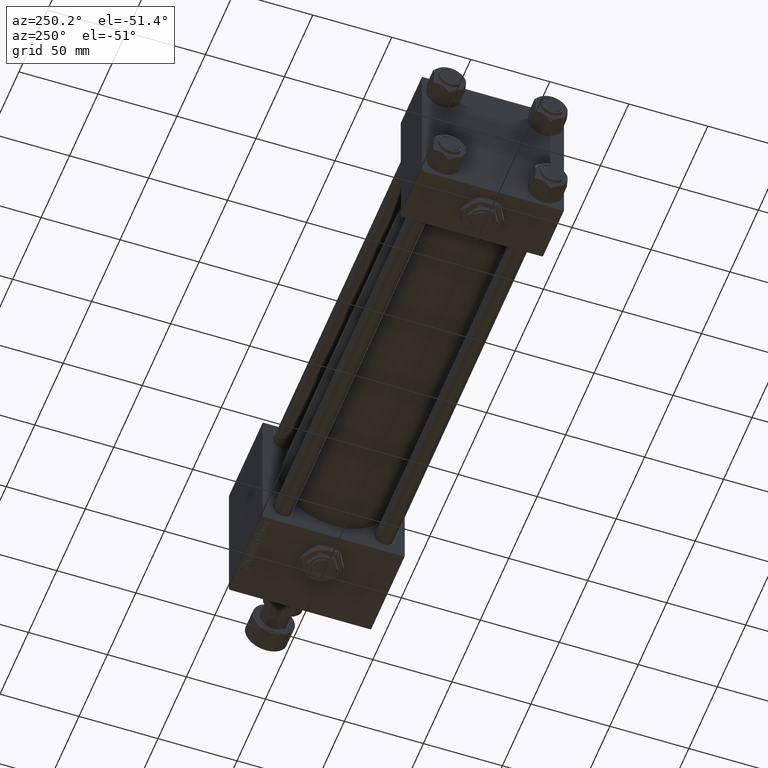
[diagram: clean part render]
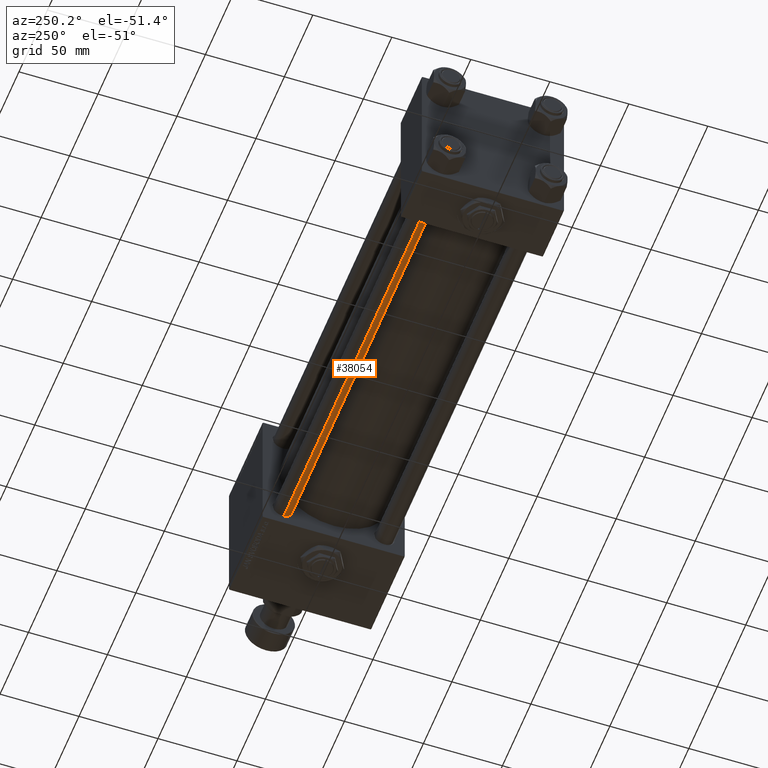
[diagram: same view with one face highlighted and labeled with its STEP entity id]
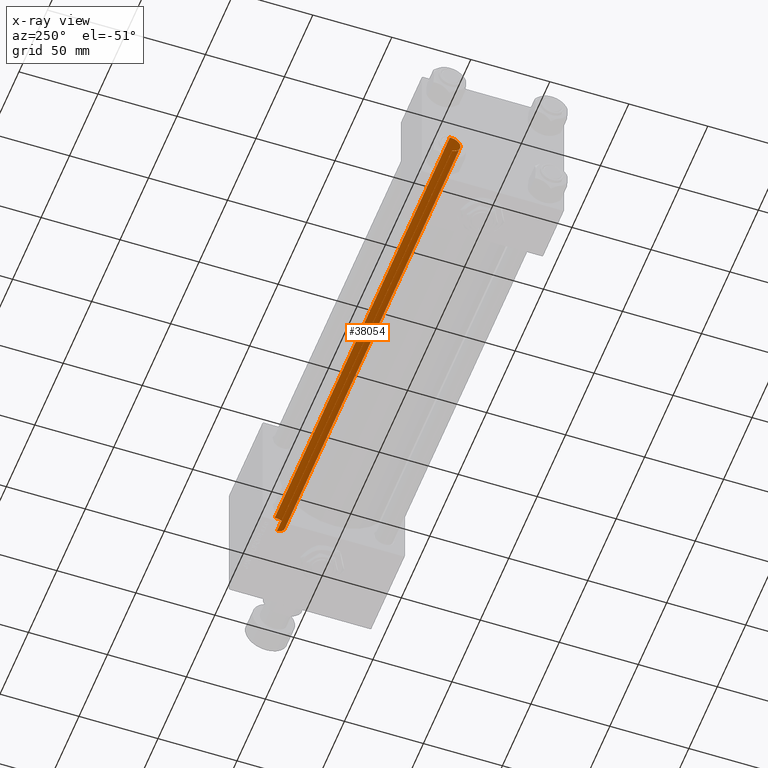
[diagram: x-ray of the same camera — body ghosted, the highlighted face saturated]
A machine part, auxiliary view. The second image highlights one B-rep face of the part: STEP entity #38054.
The next image is the same camera in x-ray: the body ghosted, the highlighted face saturated — about 0% of this face is hidden behind the body in this view.
In plain terms, the highlighted cylindrical surface (edge-blend (fillet) strip) has radius 6 mm, axis along (1, -0, 0).
Its self-contained STEP definition (entity closure, byte-faithful):
#322 = LINE ( 'NONE', #32853, #24265 ) ;
#938 = AXIS2_PLACEMENT_3D ( 'NONE', #42290, #17477, #4696 ) ;
#3420 = ORIENTED_EDGE ( 'NONE', *, *, #47959, .T. ) ;
#3432 = CIRCLE ( 'NONE', #13683, 6.000000000000000888 ) ;
#3636 = EDGE_CURVE ( 'NONE', #21544, #6914, #322, .T. ) ;
#4696 = DIRECTION ( 'NONE',  ( 1.000000000000000000, 0.000000000000000000, 0.000000000000000000 ) ) ;
#5821 = FACE_OUTER_BOUND ( 'NONE', #10164, .T. ) ;
#6673 = ORIENTED_EDGE ( 'NONE', *, *, #3636, .T. ) ;
#6914 = VERTEX_POINT ( 'NONE', #24608 ) ;
#9239 = CARTESIAN_POINT ( 'NONE',  ( 6.000000000000000888, 7.347880794884120722E-16, 0.5000000000000004441 ) ) ;
#10164 = EDGE_LOOP ( 'NONE', ( #37068, #3420, #6673, #30141 ) ) ;
#13683 = AXIS2_PLACEMENT_3D ( 'NONE', #30531, #14019, #22013 ) ;
#13742 = LINE ( 'NONE', #46559, #42276 ) ;
#14019 = DIRECTION ( 'NONE',  ( -0.000000000000000000, -0.000000000000000000, 1.000000000000000000 ) ) ;
#15877 = CARTESIAN_POINT ( 'NONE',  ( -6.000000000000000888, 0.000000000000000000, 308.5000000000000000 ) ) ;
#17477 = DIRECTION ( 'NONE',  ( 0.000000000000000000, 0.000000000000000000, -1.000000000000000000 ) ) ;
#19157 = EDGE_CURVE ( 'NONE', #6914, #34456, #3432, .T. ) ;
#19477 = CARTESIAN_POINT ( 'NONE',  ( 6.000000000000000888, 7.347880794884120722E-16, 308.5000000000000000 ) ) ;
#21544 = VERTEX_POINT ( 'NONE', #15877 ) ;
#22013 = DIRECTION ( 'NONE',  ( 1.000000000000000000, 0.000000000000000000, 0.000000000000000000 ) ) ;
#22091 = CYLINDRICAL_SURFACE ( 'NONE', #40523, 6.000000000000000888 ) ;
#23946 = CIRCLE ( 'NONE', #938, 6.000000000000000888 ) ;
#24265 = VECTOR ( 'NONE', #37375, 1000.000000000000000 ) ;
#24608 = CARTESIAN_POINT ( 'NONE',  ( -6.000000000000000888, 0.000000000000000000, 0.5000000000000004441 ) ) ;
#29309 = CARTESIAN_POINT ( 'NONE',  ( 0.000000000000000000, 0.000000000000000000, 309.0000000000000000 ) ) ;
#30000 = DIRECTION ( 'NONE',  ( -0.000000000000000000, -0.000000000000000000, -1.000000000000000000 ) ) ;
#30141 = ORIENTED_EDGE ( 'NONE', *, *, #19157, .T. ) ;
#30531 = CARTESIAN_POINT ( 'NONE',  ( 0.000000000000000000, 0.000000000000000000, 0.5000000000000004441 ) ) ;
#32853 = CARTESIAN_POINT ( 'NONE',  ( -6.000000000000000888, 0.000000000000000000, 309.0000000000000000 ) ) ;
#34354 = DIRECTION ( 'NONE',  ( -0.000000000000000000, -0.000000000000000000, -1.000000000000000000 ) ) ;
#34456 = VERTEX_POINT ( 'NONE', #9239 ) ;
#37068 = ORIENTED_EDGE ( 'NONE', *, *, #39568, .F. ) ;
#37375 = DIRECTION ( 'NONE',  ( -0.000000000000000000, -0.000000000000000000, -1.000000000000000000 ) ) ;
#38054 = ADVANCED_FACE ( 'NONE', ( #5821 ), #22091, .T. ) ;
#38696 = VERTEX_POINT ( 'NONE', #19477 ) ;
#39568 = EDGE_CURVE ( 'NONE', #38696, #34456, #13742, .T. ) ;
#40523 = AXIS2_PLACEMENT_3D ( 'NONE', #29309, #34354, #45605 ) ;
#42276 = VECTOR ( 'NONE', #30000, 1000.000000000000000 ) ;
#42290 = CARTESIAN_POINT ( 'NONE',  ( 0.000000000000000000, 0.000000000000000000, 308.5000000000000000 ) ) ;
#45605 = DIRECTION ( 'NONE',  ( -1.000000000000000000, 0.000000000000000000, 0.000000000000000000 ) ) ;
#46559 = CARTESIAN_POINT ( 'NONE',  ( 6.000000000000000888, 7.347880794884120722E-16, 309.0000000000000000 ) ) ;
#47959 = EDGE_CURVE ( 'NONE', #38696, #21544, #23946, .T. ) ;